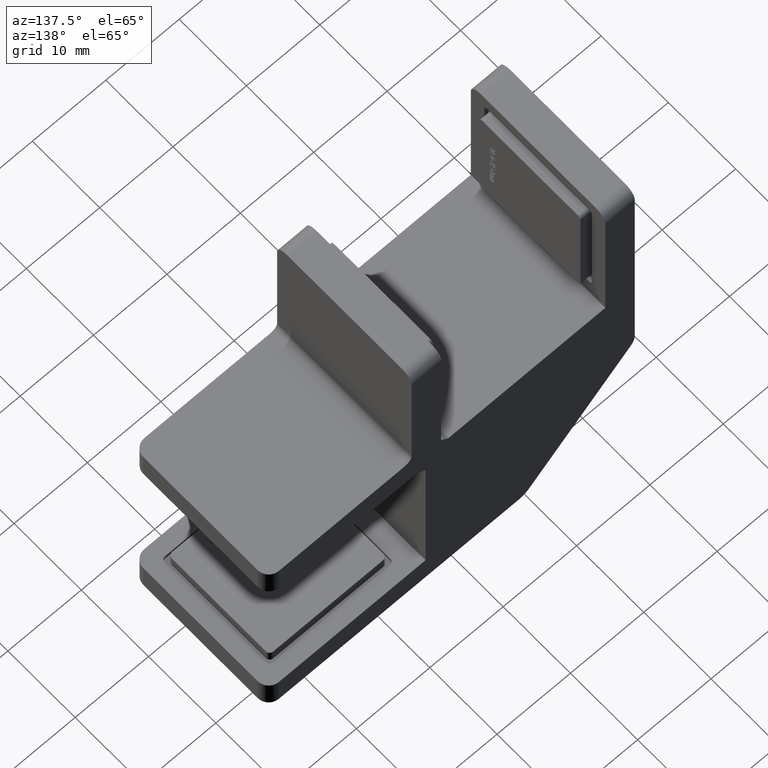
[diagram: clean part render]
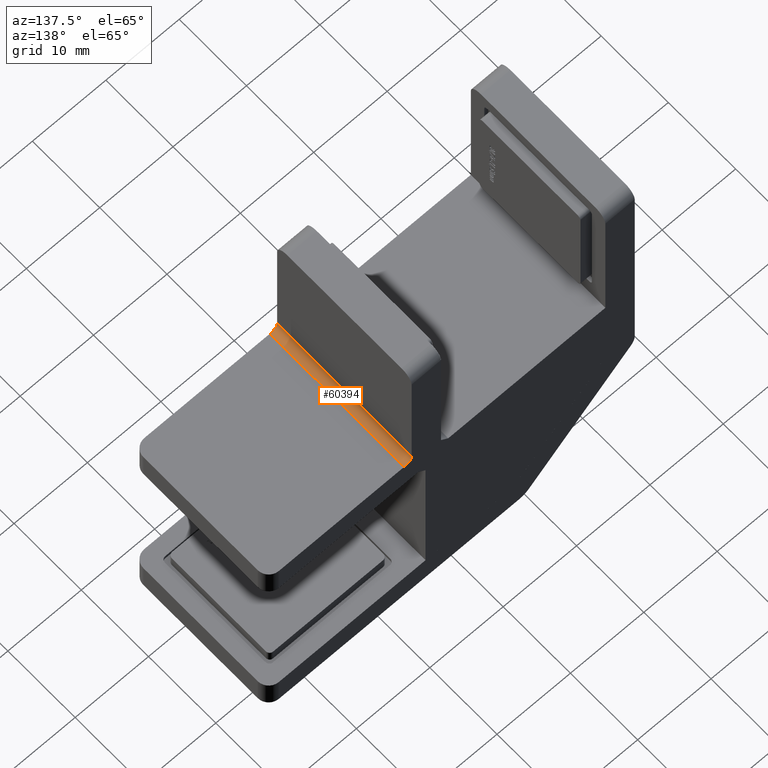
[diagram: same view with one face highlighted and labeled with its STEP entity id]
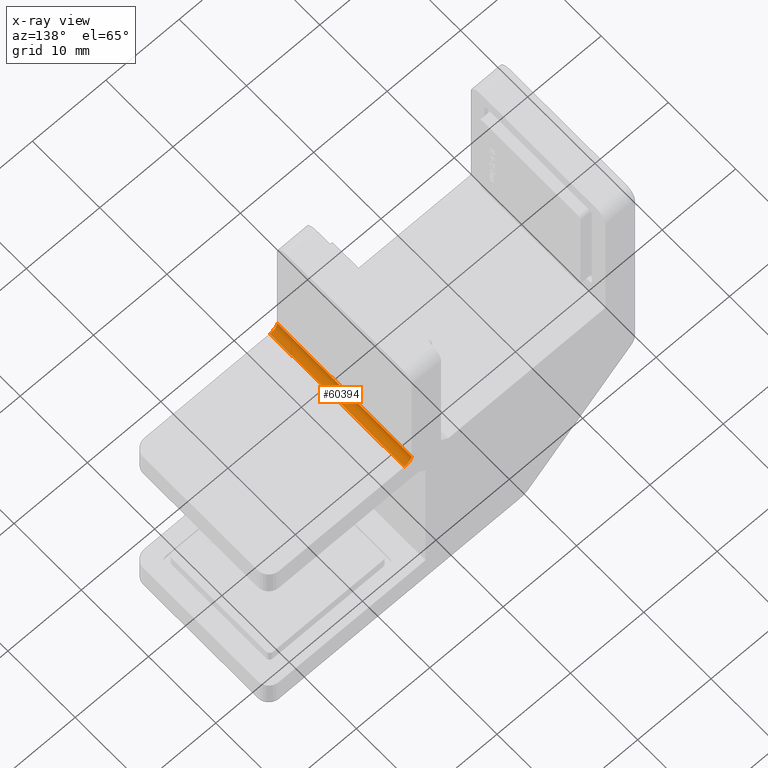
[diagram: x-ray of the same camera — body ghosted, the highlighted face saturated]
A machine part, auxiliary view. The second image highlights one B-rep face of the part: STEP entity #60394.
The next image is the same camera in x-ray: the body ghosted, the highlighted face saturated — about 0% of this face is hidden behind the body in this view.
In plain terms, the highlighted cylindrical surface (edge-blend (fillet) strip) has radius 1 mm, axis along (0, 1, 0).
Its self-contained STEP definition (entity closure, byte-faithful):
#1 = EDGE_CURVE ( 'NONE', #41061, #2594, #2323, .T. ) ;
#1045 = DIRECTION ( 'NONE',  ( -0.000000000000000000, 1.000000000000000000, -0.000000000000000000 ) ) ;
#1285 = ORIENTED_EDGE ( 'NONE', *, *, #12858, .F. ) ;
#2323 = LINE ( 'NONE', #23867, #50642 ) ;
#2594 = VERTEX_POINT ( 'NONE', #46825 ) ;
#3388 = CYLINDRICAL_SURFACE ( 'NONE', #38072, 1.000000000000000888 ) ;
#4485 = CARTESIAN_POINT ( 'NONE',  ( 31.39999999999999147, 10.00000000000000000, 30.40000000000000924 ) ) ;
#4829 = AXIS2_PLACEMENT_3D ( 'NONE', #21445, #35985, #55188 ) ;
#5255 = DIRECTION ( 'NONE',  ( 0.000000000000000000, 0.000000000000000000, 1.000000000000000000 ) ) ;
#6568 = ORIENTED_EDGE ( 'NONE', *, *, #33022, .F. ) ;
#10261 = FACE_OUTER_BOUND ( 'NONE', #31993, .T. ) ;
#11646 = CARTESIAN_POINT ( 'NONE',  ( 31.39999999999999147, -10.00000000000000000, 31.40000000000001279 ) ) ;
#12858 = EDGE_CURVE ( 'NONE', #2594, #53572, #54065, .T. ) ;
#16495 = DIRECTION ( 'NONE',  ( 0.000000000000000000, 0.000000000000000000, 1.000000000000000000 ) ) ;
#18150 = VERTEX_POINT ( 'NONE', #31577 ) ;
#20005 = AXIS2_PLACEMENT_3D ( 'NONE', #11646, #54871, #16495 ) ;
#20685 = CARTESIAN_POINT ( 'NONE',  ( 30.39999999999998792, 10.00000000000000000, 31.40000000000001279 ) ) ;
#21445 = CARTESIAN_POINT ( 'NONE',  ( 31.39999999999999147, 10.00000000000000000, 31.40000000000001279 ) ) ;
#23867 = CARTESIAN_POINT ( 'NONE',  ( 31.39999999999999147, -10.00000000000000000, 30.40000000000000924 ) ) ;
#26424 = CARTESIAN_POINT ( 'NONE',  ( 30.39999999999998792, -10.00000000000000000, 31.40000000000001279 ) ) ;
#27197 = CIRCLE ( 'NONE', #4829, 1.000000000000000888 ) ;
#31577 = CARTESIAN_POINT ( 'NONE',  ( 30.39999999999998792, 10.00000000000000000, 31.40000000000001279 ) ) ;
#31993 = EDGE_LOOP ( 'NONE', ( #59021, #6568, #1285, #55225 ) ) ;
#33022 = EDGE_CURVE ( 'NONE', #53572, #18150, #46211, .T. ) ;
#35985 = DIRECTION ( 'NONE',  ( -0.000000000000000000, -1.000000000000000000, 0.000000000000000000 ) ) ;
#38072 = AXIS2_PLACEMENT_3D ( 'NONE', #49370, #48713, #5255 ) ;
#41061 = VERTEX_POINT ( 'NONE', #4485 ) ;
#46211 = LINE ( 'NONE', #20685, #54509 ) ;
#46825 = CARTESIAN_POINT ( 'NONE',  ( 31.39999999999999147, -10.00000000000000000, 30.40000000000000924 ) ) ;
#48713 = DIRECTION ( 'NONE',  ( 0.000000000000000000, 1.000000000000000000, 0.000000000000000000 ) ) ;
#49370 = CARTESIAN_POINT ( 'NONE',  ( 31.39999999999999147, 10.00000000000000000, 31.40000000000001279 ) ) ;
#50642 = VECTOR ( 'NONE', #61845, 1000.000000000000000 ) ;
#53572 = VERTEX_POINT ( 'NONE', #26424 ) ;
#54065 = CIRCLE ( 'NONE', #20005, 1.000000000000000888 ) ;
#54509 = VECTOR ( 'NONE', #1045, 1000.000000000000000 ) ;
#54871 = DIRECTION ( 'NONE',  ( 0.000000000000000000, 1.000000000000000000, -0.000000000000000000 ) ) ;
#55188 = DIRECTION ( 'NONE',  ( 0.000000000000000000, 0.000000000000000000, 1.000000000000000000 ) ) ;
#55225 = ORIENTED_EDGE ( 'NONE', *, *, #1, .F. ) ;
#56448 = EDGE_CURVE ( 'NONE', #18150, #41061, #27197, .T. ) ;
#59021 = ORIENTED_EDGE ( 'NONE', *, *, #56448, .F. ) ;
#60394 = ADVANCED_FACE ( 'NONE', ( #10261 ), #3388, .F. ) ;
#61845 = DIRECTION ( 'NONE',  ( 0.000000000000000000, -1.000000000000000000, 0.000000000000000000 ) ) ;